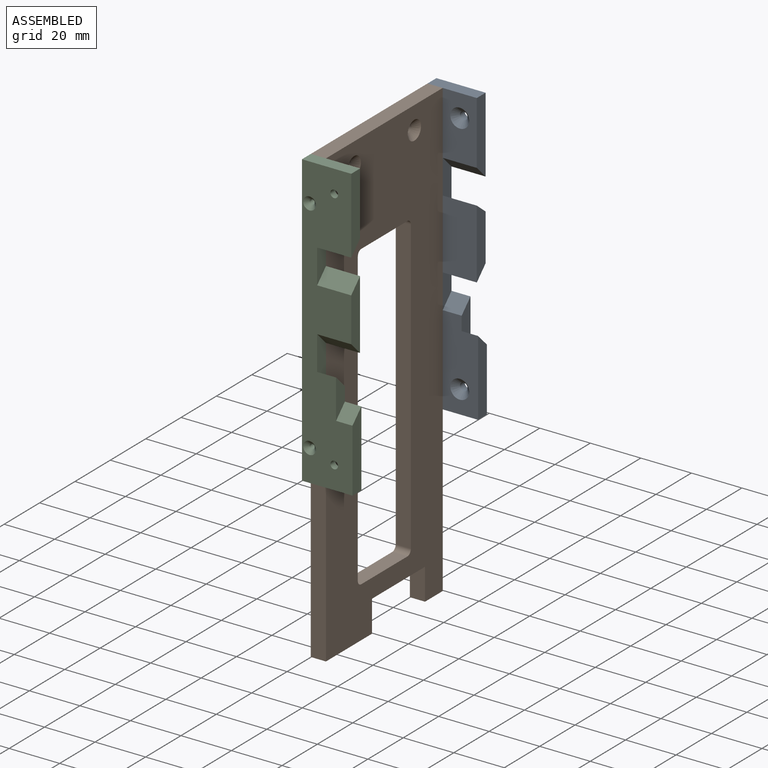
[diagram: assembled view]
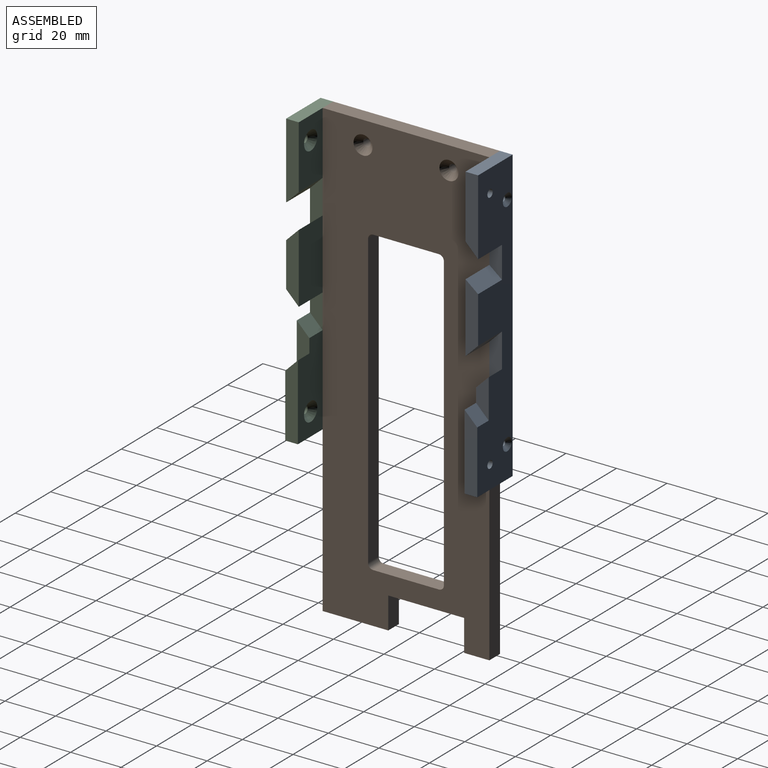
[diagram: assembled view, second angle]
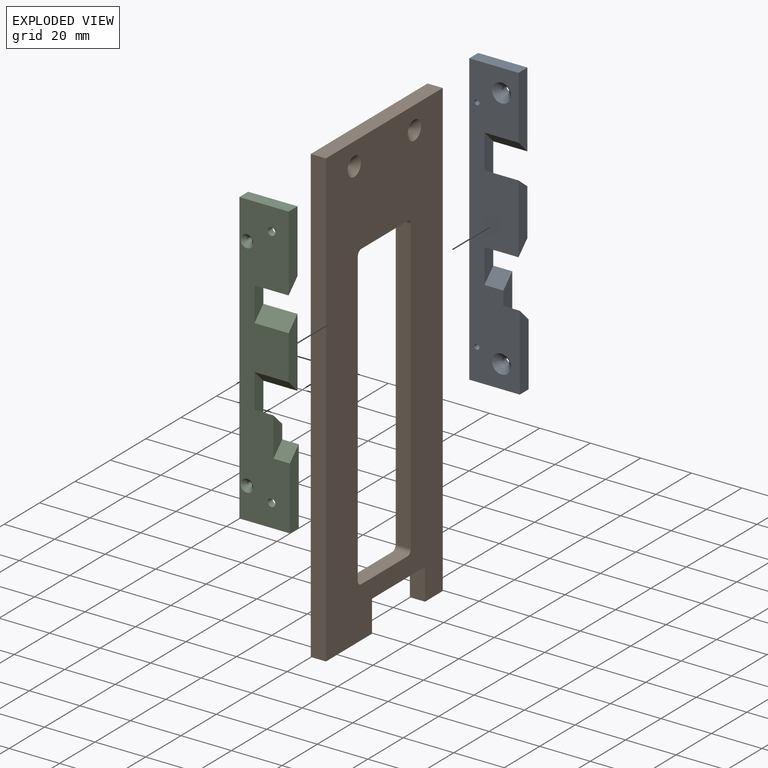
[diagram: exploded view]
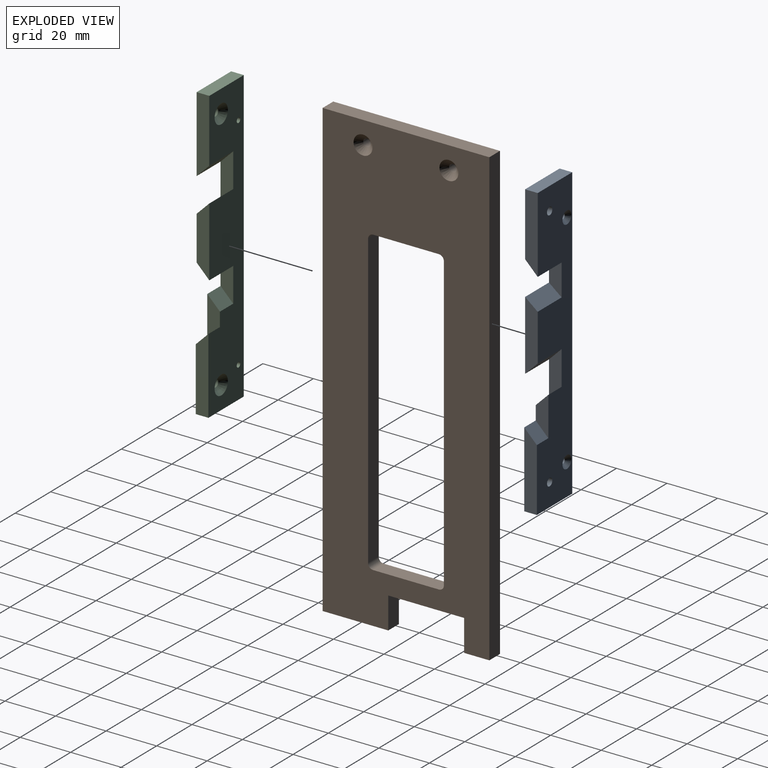
[diagram: exploded view, second angle]
ASSEMBLY  parts=3 mates=2
PART A: 24 faces, bbox 20x5x115 mm
  f0: plane 115x20mm, normal (0,-1,0), area 1765.4mm2, adj f1,f2,f3,f4,f5,f6,f7,f8
  f1: plane 15.5x5mm, normal (1,0,0), area 52.5mm2, adj f0,f10,f14,f15
  f2: plane 27.5x5mm, normal (1,0,0), area 115mm2, adj f0,f10,f11,f12
  f3: plane 30x5mm, normal (1,0,0), area 137.5mm2, adj f0,f5,f10,f13
  f4: plane 17.49x5mm, normal (1,0,0), area 65mm2, adj f0,f10,f11,f13
  f5: plane 19.5x5mm, normal (0,0,1), area 97.5mm2, adj f0,f3,f6,f10
  f6: plane 115x5mm, normal (-1,0,0), area 575mm2, adj f0,f5,f7,f10
  f7: plane 20x5mm, normal (0,0,-1), area 100mm2, adj f0,f6,f8,f10
  f8: plane 30x5mm, normal (1,0,0), area 137.5mm2, adj f0,f7,f10,f15
  f9: plane 18.5x5mm, normal (1,0,0), area 67.5mm2, adj f0,f10,f12,f14
  f10: plane 115x20mm, normal (0,1,0), area 1757.7mm2, adj f1,f2,f3,f4,f5,f6,f7,f8
  f11: plane 13.5x5mm, normal (0,0.62,0.78), area 86.4mm2, adj f0,f2,f4,f10
  f12: plane 13.5x5mm, normal (0,0.71,-0.71), area 95.5mm2, adj f0,f2,f9,f10
  f13: plane 13.5x5mm, normal (0,-0.71,-0.71), area 95.5mm2, adj f0,f3,f4,f10
  f14: plane 7.5x5mm, normal (0,-0.71,0.71), area 53mm2, adj f0,f1,f9,f10
  f15: plane 6.5x5mm, normal (0,0.71,0.71), area 46mm2, adj f0,f1,f8,f10
  f16: cylinder r=1.5mm len=3mm, axis (0,-1,0), area 25.9mm2, adj f10,f17
  f17: cone r=1.5mm half-angle=45deg, axis (0,-1,0), area 52.5mm2, adj f0,f16
  f18: cylinder r=1.5mm len=3mm, axis (0,-1,0), area 25.9mm2, adj f10,f19
  f19: cone r=1.5mm half-angle=45deg, axis (0,-1,0), area 52.5mm2, adj f0,f18
  f20: cylinder r=1mm len=3.5mm, axis (0,1,0), area 22mm2, adj f0,f21
  f21: cone r=1mm half-angle=45deg, axis (0,1,0), area 23.3mm2, adj f10,f20
  f22: cylinder r=1mm len=3.5mm, axis (0,1,0), area 22mm2, adj f0,f23
  f23: cone r=1mm half-angle=45deg, axis (0,1,0), area 23.3mm2, adj f10,f22
PART B: 26 faces, bbox 66x6x180 mm
  f0: plane 26x6mm, normal (0,0,-1), area 152.9mm2, adj f1,f2,f13,f19,f24
  f1: plane 180x66mm, normal (0,-1,0), area 7894.3mm2, adj f0,f3,f4,f5,f6,f7,f8,f9
  f2: plane 180x66mm, normal (0,1,0), area 7820.1mm2, adj f0,f3,f4,f5,f6,f7,f8,f9
  f3: cylinder r=2mm len=6mm, axis (0,1,0), area 18.8mm2, adj f1,f2,f4,f14
  f4: plane 26x6mm, normal (0,0,1), area 156mm2, adj f1,f2,f3,f5
  f5: cylinder r=2mm len=6mm, axis (0,1,0), area 18.8mm2, adj f1,f2,f4,f6
  f6: plane 116x6mm, normal (1,0,0), area 696mm2, adj f1,f2,f5,f7
  f7: cylinder r=2mm len=6mm, axis (0,1,0), area 18.8mm2, adj f1,f2,f6,f8
  f8: plane 26x6mm, normal (0,0,-1), area 156mm2, adj f1,f2,f7,f9
  f9: cylinder r=2mm len=6mm, axis (0,1,0), area 18.8mm2, adj f1,f2,f8,f14
  f10: plane 66x6mm, normal (0,0,1), area 396mm2, adj f1,f2,f11,f13
  f11: plane 180x6mm, normal (-1,0,0), area 1080mm2, adj f1,f2,f10,f12
  f12: plane 10x6mm, normal (0,0,-1), area 56.9mm2, adj f1,f2,f11,f21,f22
  f13: plane 180x6mm, normal (1,0,0), area 1080mm2, adj f0,f1,f2,f10
  f14: plane 116x6mm, normal (-1,0,0), area 696mm2, adj f1,f2,f3,f9
  f15: cylinder r=1.5mm len=3.75mm, axis (0,1,0), area 35.3mm2, adj f1,f16
  f16: cone r=1.5mm half-angle=45deg, axis (0,1,0), area 52.5mm2, adj f2,f15
  f17: cylinder r=1.5mm len=3.75mm, axis (0,1,0), area 35.3mm2, adj f1,f18
  f18: cone r=1.5mm half-angle=45deg, axis (0,1,0), area 52.5mm2, adj f2,f17
  f19: plane 12.5x6mm, normal (-1,0,0), area 75mm2, adj f0,f1,f2,f20
  f20: plane 30x6mm, normal (0,0,-1), area 180mm2, adj f1,f2,f19,f21
  f21: plane 12.5x6mm, normal (1,0,0), area 75mm2, adj f1,f2,f12,f20
  f22: cylinder r=1mm len=15mm, axis (0,0,-1), area 94.2mm2, adj f12,f23
  f23: cone r=0mm half-angle=59deg, axis (0,0,-1), area 3.7mm2, adj f22
  f24: cylinder r=1mm len=15mm, axis (0,0,-1), area 94.2mm2, adj f0,f25
  f25: cone r=0mm half-angle=59deg, axis (0,0,-1), area 3.7mm2, adj f24
PART C: 24 faces, bbox 20x5x115 mm
  f0: plane 27.5x5mm, normal (1,0,0), area 112.5mm2, adj f1,f10,f12,f13
  f1: plane 115x20mm, normal (0,-1,0), area 1744.1mm2, adj f0,f2,f3,f4,f5,f6,f7,f8
  f2: plane 18.5x5mm, normal (1,0,0), area 67.5mm2, adj f1,f10,f11,f12
  f3: plane 30x5mm, normal (1,0,0), area 137.5mm2, adj f1,f4,f10,f11
  f4: plane 19.5x5mm, normal (0,0,1), area 97.5mm2, adj f1,f3,f5,f10
  f5: plane 115x5mm, normal (-1,0,0), area 575mm2, adj f1,f4,f6,f10
  f6: plane 20x5mm, normal (0,0,-1), area 100mm2, adj f1,f5,f7,f10
  f7: plane 30x5mm, normal (1,0,0), area 137.5mm2, adj f1,f6,f10,f15
  f8: plane 15.5x5mm, normal (1,0,0), area 52.5mm2, adj f1,f10,f14,f15
  f9: plane 18.5x5mm, normal (1,0,0), area 67.5mm2, adj f1,f10,f13,f14
  f10: plane 115x20mm, normal (0,1,0), area 1765.4mm2, adj f0,f2,f3,f4,f5,f6,f7,f8
  f11: plane 13.5x5mm, normal (0,0.71,-0.71), area 95.5mm2, adj f1,f2,f3,f10
  f12: plane 13.5x5mm, normal (0,-0.71,0.71), area 95.5mm2, adj f0,f1,f2,f10
  f13: plane 13.5x5mm, normal (0,-0.71,-0.71), area 95.5mm2, adj f0,f1,f9,f10
  f14: plane 7.5x5mm, normal (0,0.71,0.71), area 53mm2, adj f1,f8,f9,f10
  f15: plane 6.5x5mm, normal (0,-0.71,0.71), area 46mm2, adj f1,f7,f8,f10
  f16: cylinder r=1.5mm len=3mm, axis (0,1,0), area 25.9mm2, adj f1,f17
  f17: cone r=1.5mm half-angle=45deg, axis (0,1,0), area 52.5mm2, adj f10,f16
  f18: cylinder r=1.5mm len=3mm, axis (0,1,0), area 25.9mm2, adj f1,f19
  f19: cone r=1.5mm half-angle=45deg, axis (0,1,0), area 52.5mm2, adj f10,f18
  f20: cylinder r=1mm len=3.5mm, axis (0,-1,0), area 22mm2, adj f10,f21
  f21: cone r=1mm half-angle=45deg, axis (0,-1,0), area 23.3mm2, adj f1,f20
  f22: cylinder r=1mm len=3.5mm, axis (0,-1,0), area 22mm2, adj f10,f23
  f23: cone r=1mm half-angle=45deg, axis (0,-1,0), area 23.3mm2, adj f1,f22
PLACE A t=(-56.1,-0.61,-119.8)mm
PLACE B rot(axis=(0,0,-1),90deg) t=(-50.47,-5.61,-185.47)mm
PLACE C t=(-56.1,-71.61,-119.8)mm
MATE fastened A.f0 <-> B.f11  axis (0,-1,0) through (-56.47,-5.61,-5.47)mm
MATE fastened B.f13 <-> C.f10  axis (0,-1,0) through (-56.47,-71.61,-5.47)mm
